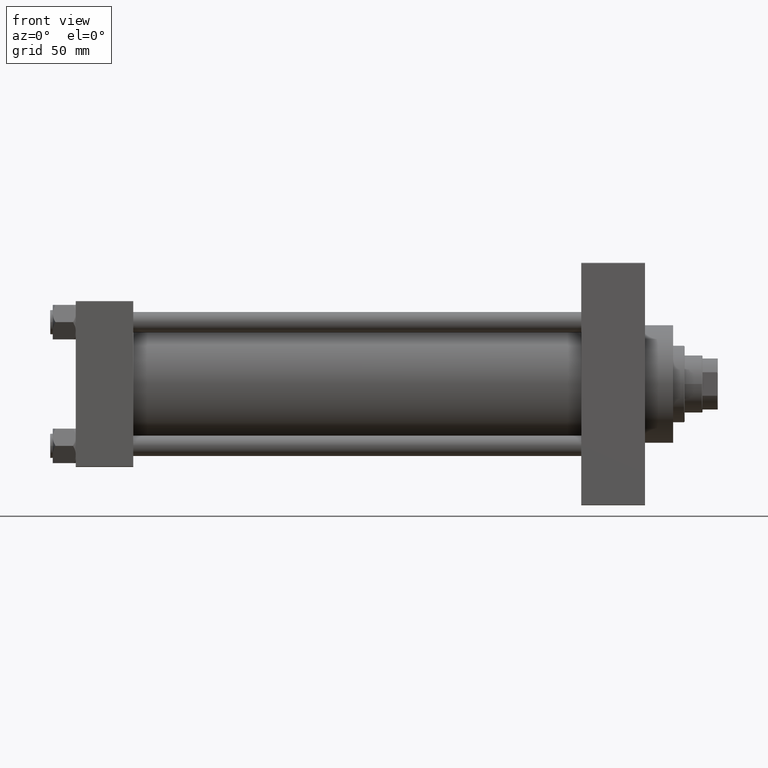
[diagram: clean part render]
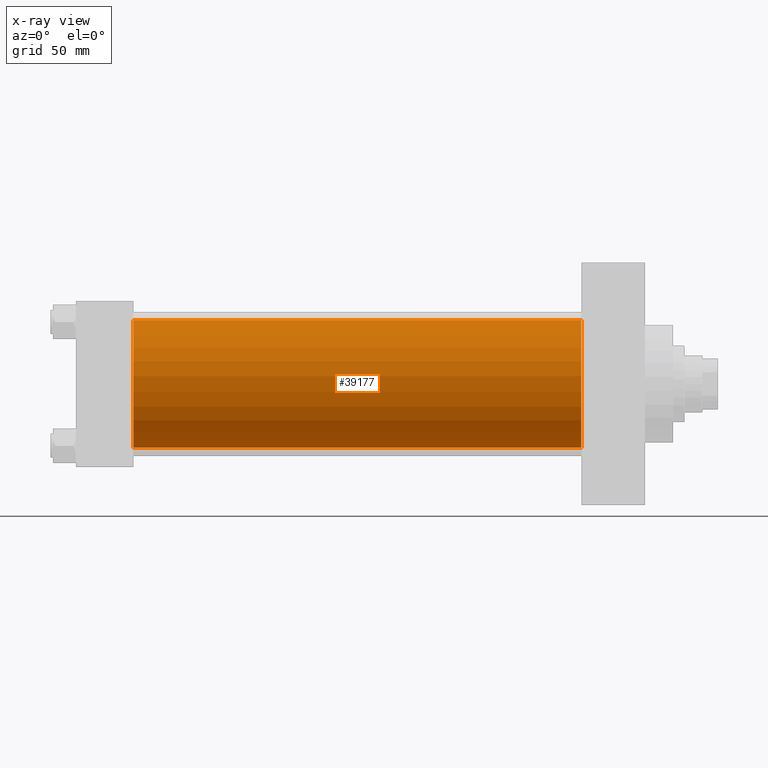
[diagram: x-ray — body ghosted, one internal face saturated and labeled with its STEP entity id]
A machine part, front view, then the same camera in x-ray: the body is ghosted and one INTERNAL B-rep face — a face not visible from any outside direction — is saturated and labeled: STEP entity #39177.
In plain terms, the highlighted cylindrical surface (partial cylindrical patch) has radius 50 mm, axis along (-1, -0, -0).
Its self-contained STEP definition (entity closure, byte-faithful):
#1545 = DIRECTION ( 'NONE',  ( -1.000000000000000000, -0.000000000000000000, -0.000000000000000000 ) ) ;
#2572 = EDGE_CURVE ( 'NONE', #3567, #37254, #11425, .T. ) ;
#3567 = VERTEX_POINT ( 'NONE', #13135 ) ;
#4615 = LINE ( 'NONE', #12184, #6627 ) ;
#5514 = AXIS2_PLACEMENT_3D ( 'NONE', #39144, #12316, #47230 ) ;
#5576 = EDGE_CURVE ( 'NONE', #34559, #37254, #4615, .T. ) ;
#6121 = ORIENTED_EDGE ( 'NONE', *, *, #27850, .F. ) ;
#6627 = VECTOR ( 'NONE', #46605, 1000.000000000000000 ) ;
#7693 = DIRECTION ( 'NONE',  ( 0.000000000000000000, 0.000000000000000000, -1.000000000000000000 ) ) ;
#8083 = CARTESIAN_POINT ( 'NONE',  ( 45.00000000000000000, -2.602085213965210642E-15, 0.000000000000000000 ) ) ;
#9249 = DIRECTION ( 'NONE',  ( 0.000000000000000000, 0.000000000000000000, -1.000000000000000000 ) ) ;
#9864 = EDGE_CURVE ( 'NONE', #46000, #34559, #35069, .T. ) ;
#9963 = EDGE_LOOP ( 'NONE', ( #47697, #18060, #26935, #6121 ) ) ;
#11425 = CIRCLE ( 'NONE', #27549, 50.00000000000000000 ) ;
#12184 = CARTESIAN_POINT ( 'NONE',  ( 395.9999999999999432, 3.521148781771555838E-15, -50.00000000000000000 ) ) ;
#12316 = DIRECTION ( 'NONE',  ( -1.000000000000000000, -0.000000000000000000, -0.000000000000000000 ) ) ;
#13135 = CARTESIAN_POINT ( 'NONE',  ( 45.00000000000000000, -2.602085213965210642E-15, 50.00000000000000000 ) ) ;
#13372 = CARTESIAN_POINT ( 'NONE',  ( 395.9999999999999432, 3.521148781771555838E-15, -50.00000000000000000 ) ) ;
#16358 = FACE_OUTER_BOUND ( 'NONE', #9963, .T. ) ;
#18060 = ORIENTED_EDGE ( 'NONE', *, *, #5576, .T. ) ;
#23205 = CYLINDRICAL_SURFACE ( 'NONE', #5514, 50.00000000000000000 ) ;
#23869 = CARTESIAN_POINT ( 'NONE',  ( 395.9999999999999432, -2.602085213965210642E-15, 0.000000000000000000 ) ) ;
#25020 = CARTESIAN_POINT ( 'NONE',  ( 395.9999999999999432, -2.602085213965210642E-15, 50.00000000000000000 ) ) ;
#25708 = VECTOR ( 'NONE', #1545, 1000.000000000000000 ) ;
#26935 = ORIENTED_EDGE ( 'NONE', *, *, #2572, .F. ) ;
#27549 = AXIS2_PLACEMENT_3D ( 'NONE', #8083, #40382, #9249 ) ;
#27850 = EDGE_CURVE ( 'NONE', #46000, #3567, #43760, .T. ) ;
#33250 = CARTESIAN_POINT ( 'NONE',  ( 395.9999999999999432, -2.602085213965210642E-15, 50.00000000000000000 ) ) ;
#33764 = CARTESIAN_POINT ( 'NONE',  ( 45.00000000000000000, 3.521148781771555838E-15, -50.00000000000000000 ) ) ;
#34559 = VERTEX_POINT ( 'NONE', #13372 ) ;
#35069 = CIRCLE ( 'NONE', #44713, 50.00000000000000000 ) ;
#37254 = VERTEX_POINT ( 'NONE', #33764 ) ;
#39144 = CARTESIAN_POINT ( 'NONE',  ( 395.9999999999999432, -2.602085213965210642E-15, 0.000000000000000000 ) ) ;
#39177 = ADVANCED_FACE ( 'NONE', ( #16358 ), #23205, .F. ) ;
#40382 = DIRECTION ( 'NONE',  ( 1.000000000000000000, 0.000000000000000000, 0.000000000000000000 ) ) ;
#42837 = DIRECTION ( 'NONE',  ( 1.000000000000000000, 0.000000000000000000, 0.000000000000000000 ) ) ;
#43760 = LINE ( 'NONE', #25020, #25708 ) ;
#44713 = AXIS2_PLACEMENT_3D ( 'NONE', #23869, #42837, #7693 ) ;
#46000 = VERTEX_POINT ( 'NONE', #33250 ) ;
#46605 = DIRECTION ( 'NONE',  ( -1.000000000000000000, -0.000000000000000000, -0.000000000000000000 ) ) ;
#47230 = DIRECTION ( 'NONE',  ( 0.000000000000000000, 0.000000000000000000, 1.000000000000000000 ) ) ;
#47697 = ORIENTED_EDGE ( 'NONE', *, *, #9864, .T. ) ;